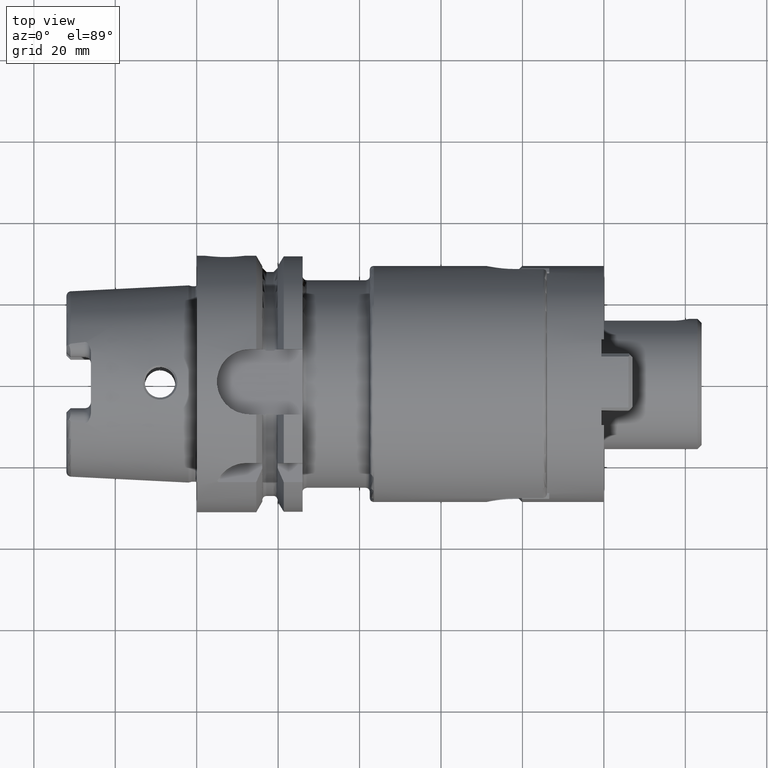
[diagram: clean part render]
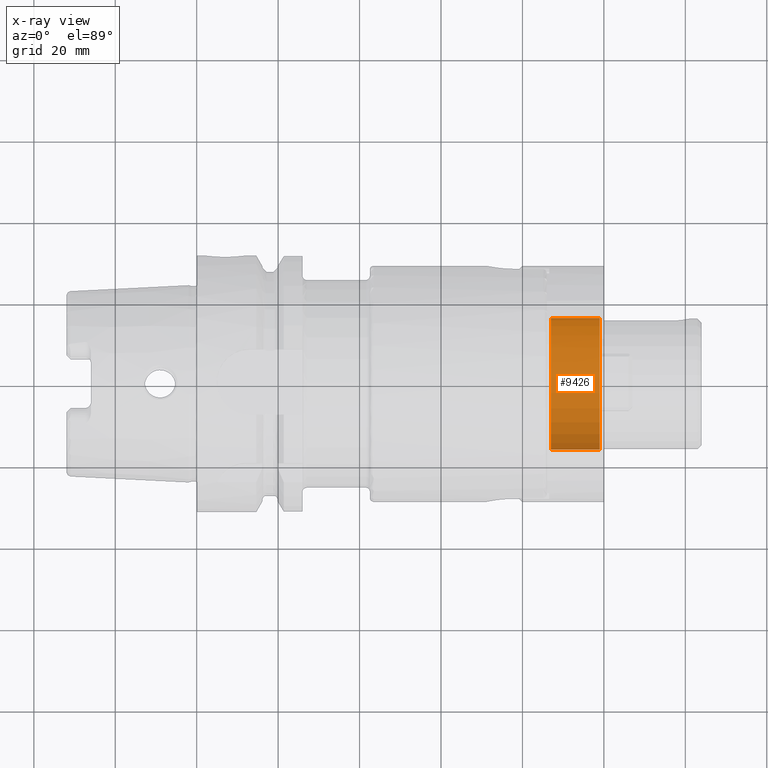
[diagram: x-ray — body ghosted, one internal face saturated and labeled with its STEP entity id]
A machine part, top view, then the same camera in x-ray: the body is ghosted and one INTERNAL B-rep face — a face not visible from any outside direction — is saturated and labeled: STEP entity #9426.
In plain terms, the highlighted cylindrical surface (partial cylindrical patch) has radius 16.195 mm, axis along (-1, 0, 0).
Its self-contained STEP definition (entity closure, byte-faithful):
#8067=CARTESIAN_POINT('',(0.E0,1.E0,0.E0));
#8068=DIRECTION('',(0.E0,-1.E0,0.E0));
#8069=DIRECTION('',(1.E0,0.E0,0.E0));
#8070=AXIS2_PLACEMENT_3D('',#8067,#8068,#8069);
#8072=DIRECTION('',(0.E0,-1.E0,0.E0));
#8073=VECTOR('',#8072,1.2E1);
#8074=CARTESIAN_POINT('',(1.6195E1,1.3E1,0.E0));
#8075=LINE('',#8074,#8073);
#8076=CARTESIAN_POINT('',(0.E0,1.3E1,0.E0));
#8077=DIRECTION('',(0.E0,-1.E0,0.E0));
#8078=DIRECTION('',(1.E0,0.E0,0.E0));
#8079=AXIS2_PLACEMENT_3D('',#8076,#8077,#8078);
#8096=DIRECTION('',(0.E0,-1.E0,0.E0));
#8097=VECTOR('',#8096,1.2E1);
#8098=CARTESIAN_POINT('',(-1.6195E1,1.3E1,0.E0));
#8099=LINE('',#8098,#8097);
#8430=CARTESIAN_POINT('',(1.6195E1,1.3E1,0.E0));
#8431=CARTESIAN_POINT('',(-1.6195E1,1.3E1,0.E0));
#8432=VERTEX_POINT('',#8430);
#8433=VERTEX_POINT('',#8431);
#8665=CARTESIAN_POINT('',(1.6195E1,1.E0,0.E0));
#8666=CARTESIAN_POINT('',(-1.6195E1,1.E0,0.E0));
#8667=VERTEX_POINT('',#8665);
#8668=VERTEX_POINT('',#8666);
#9412=CARTESIAN_POINT('',(0.E0,2.3755E1,0.E0));
#9413=DIRECTION('',(0.E0,-1.E0,0.E0));
#9414=DIRECTION('',(1.E0,0.E0,0.E0));
#9415=AXIS2_PLACEMENT_3D('',#9412,#9413,#9414);
#9416=CYLINDRICAL_SURFACE('',#9415,1.6195E1);
#9418=ORIENTED_EDGE('',*,*,#9417,.F.);
#9420=ORIENTED_EDGE('',*,*,#9419,.F.);
#9421=ORIENTED_EDGE('',*,*,#9405,.T.);
#9423=ORIENTED_EDGE('',*,*,#9422,.T.);
#9424=EDGE_LOOP('',(#9418,#9420,#9421,#9423));
#9425=FACE_OUTER_BOUND('',#9424,.F.);
#9426=ADVANCED_FACE('',(#9425),#9416,.F.);
#8071=CIRCLE('',#8070,1.6195E1);
#8080=CIRCLE('',#8079,1.6195E1);
#9405=EDGE_CURVE('',#8432,#8433,#8080,.T.);
#9417=EDGE_CURVE('',#8667,#8668,#8071,.T.);
#9419=EDGE_CURVE('',#8432,#8667,#8075,.T.);
#9422=EDGE_CURVE('',#8433,#8668,#8099,.T.);